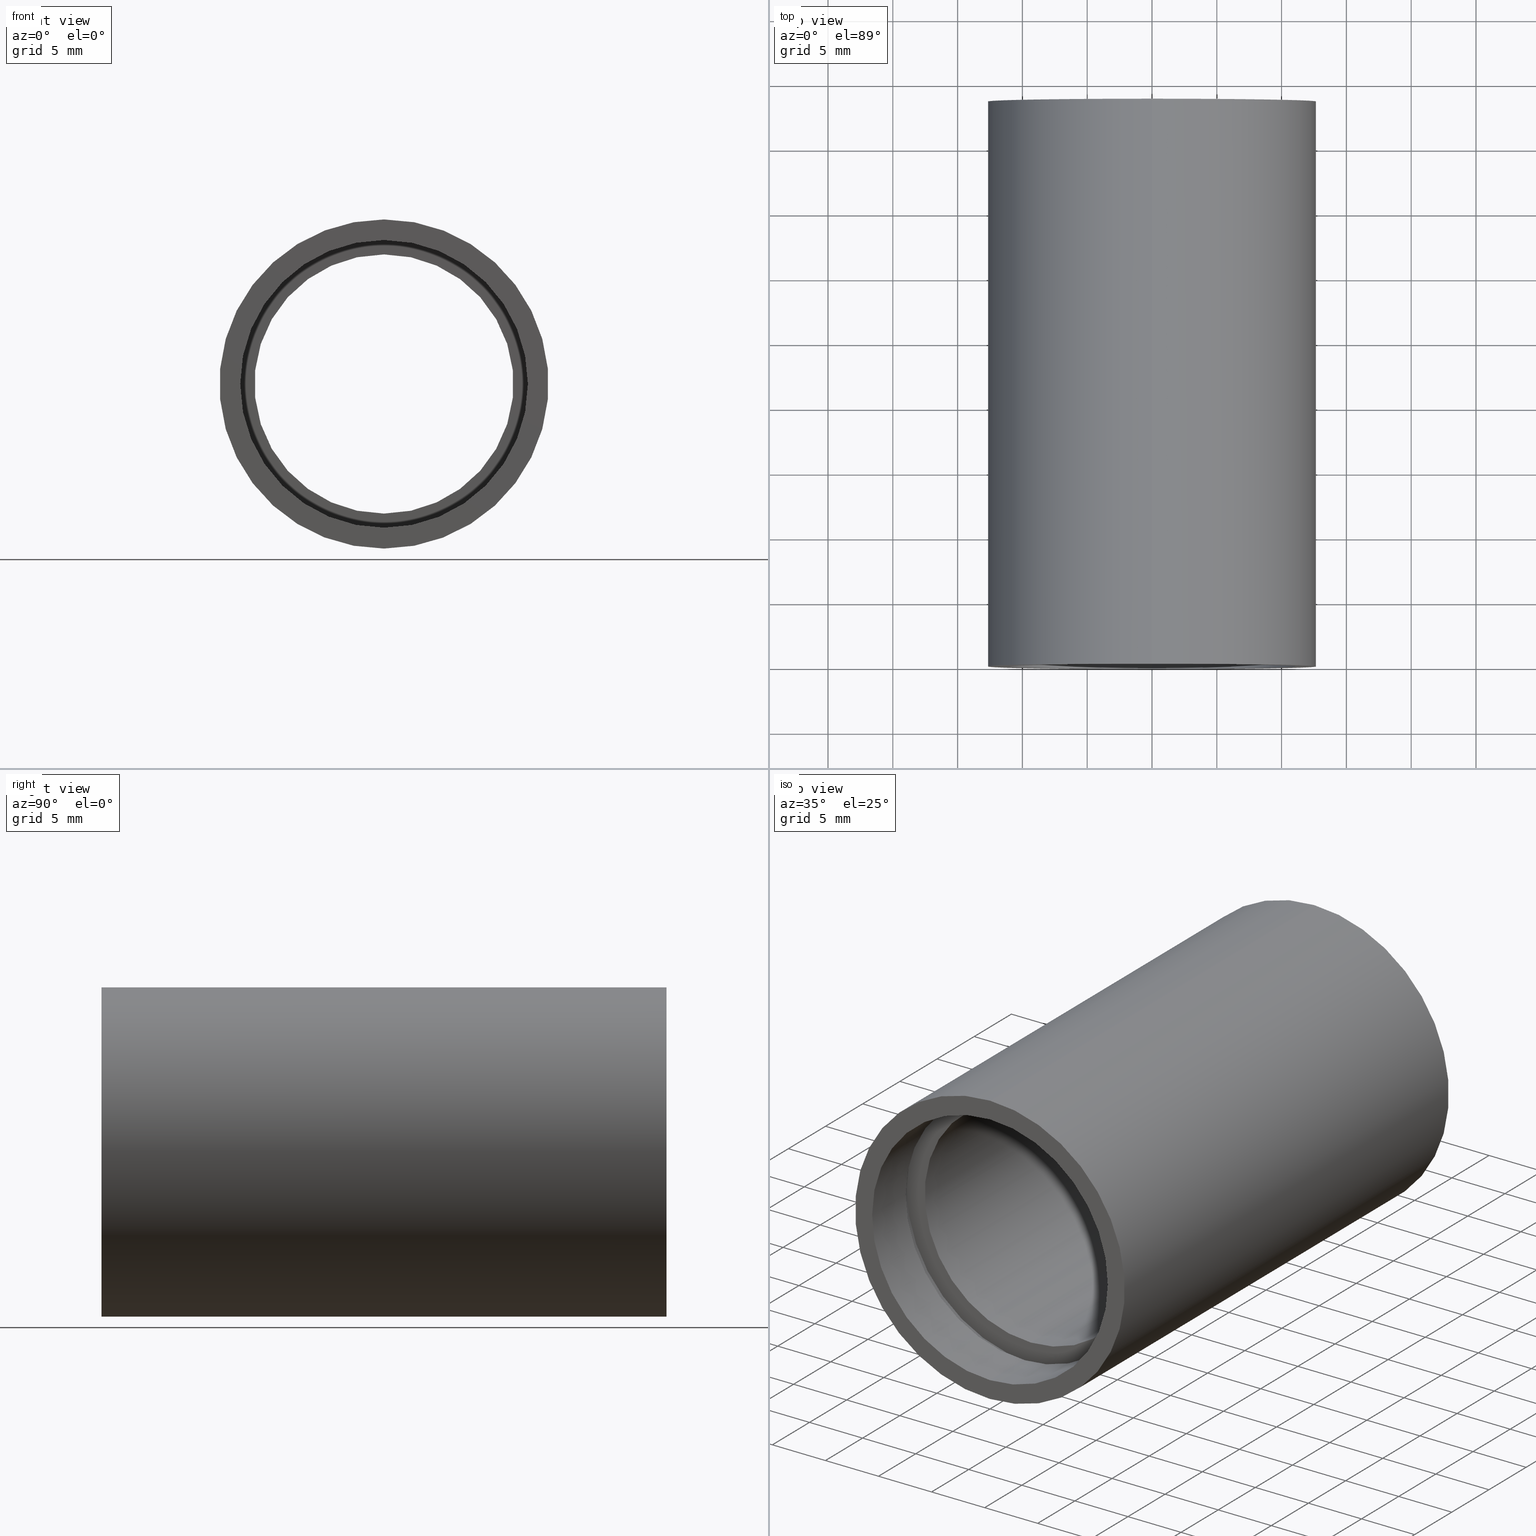
[diagram: canonical four-view strip — front | top / right | iso, engineering-drawing reading convention]
A machine part, canonical four-view strip (front | top / right | iso — engineering-drawing reading convention). The complete STEP part file that produces these views, byte-faithful:
ISO-10303-21;
HEADER;
FILE_DESCRIPTION (( 'STEP AP214' ),
    '1' );
FILE_NAME ('503063.STEP',
    '2019-09-09T02:42:14',
    ( '' ),
    ( '' ),
    'SwSTEP 2.0',
    'SolidWorks 2016',
    '' );
FILE_SCHEMA (( 'AUTOMOTIVE_DESIGN' ));
ENDSEC;

DATA;
#1 = PRODUCT_DEFINITION_SHAPE ( 'NONE', 'NONE',  #514 ) ;
#2 = DIRECTION ( 'NONE',  ( -0.0000000000000000000, 1.000000000000000000, -0.0000000000000000000 ) ) ;
#3 = ORIENTED_EDGE ( 'NONE', *, *, #433, .F. ) ;
#4 = CARTESIAN_POINT ( 'NONE',  ( 0.0000000000000000000, 5.499999999999976900, 10.00000000000002000 ) ) ;
#5 = SURFACE_STYLE_FILL_AREA ( #179 ) ;
#6 = DIRECTION ( 'NONE',  ( -0.0000000000000000000, 1.000000000000000000, -0.0000000000000000000 ) ) ;
#7 = DIRECTION ( 'NONE',  ( -0.0000000000000000000, 1.000000000000000000, -0.0000000000000000000 ) ) ;
#8 = VERTEX_POINT ( 'NONE', #395 ) ;
#9 = DIRECTION ( 'NONE',  ( -0.0000000000000000000, 1.000000000000000000, -0.0000000000000000000 ) ) ;
#10 =( LENGTH_UNIT ( ) NAMED_UNIT ( * ) SI_UNIT ( .MILLI., .METRE. ) );
#11 = AXIS2_PLACEMENT_3D ( 'NONE', #307, #556, #204 ) ;
#12 = AXIS2_PLACEMENT_3D ( 'NONE', #37, #386, #624 ) ;
#13 = DIRECTION ( 'NONE',  ( -0.0000000000000000000, 1.000000000000000000, -0.0000000000000000000 ) ) ;
#14 = CARTESIAN_POINT ( 'NONE',  ( 0.0000000000000000000, -2.775557561562891400E-014, 0.0000000000000000000 ) ) ;
#15 = SURFACE_STYLE_FILL_AREA ( #394 ) ;
#16 = ORIENTED_EDGE ( 'NONE', *, *, #336, .F. ) ;
#17 = ORIENTED_EDGE ( 'NONE', *, *, #516, .F. ) ;
#18 = DIRECTION ( 'NONE',  ( -0.0000000000000000000, 1.000000000000000000, -0.0000000000000000000 ) ) ;
#19 = PRESENTATION_STYLE_ASSIGNMENT (( #231 ) ) ;
#20 = CARTESIAN_POINT ( 'NONE',  ( 11.10000000000002300, -1.590039098016662300E-014, 0.0000000000000000000 ) ) ;
#21 = CARTESIAN_POINT ( 'NONE',  ( 0.0000000000000000000, 39.09999999999998000, 11.70000000000001400 ) ) ;
#22 = ORIENTED_EDGE ( 'NONE', *, *, #385, .F. ) ;
#23 = CARTESIAN_POINT ( 'NONE',  ( 0.0000000000000000000, 38.09999999999998000, 0.0000000000000000000 ) ) ;
#24 = DIRECTION ( 'NONE',  ( 0.0000000000000000000, 0.0000000000000000000, 1.000000000000000000 ) ) ;
#25 = CARTESIAN_POINT ( 'NONE',  ( 0.0000000000000000000, 161.3761669434274500, 0.0000000000000000000 ) ) ;
#26 = SHAPE_DEFINITION_REPRESENTATION ( #1, #415 ) ;
#27 = VERTEX_POINT ( 'NONE', #148 ) ;
#28 = CYLINDRICAL_SURFACE ( 'NONE', #610, 10.00000000000002000 ) ;
#29 = LINE ( 'NONE', #235, #532 ) ;
#30 = MECHANICAL_DESIGN_GEOMETRIC_PRESENTATION_REPRESENTATION (  '', ( #511 ), #609 ) ;
#31 = AXIS2_PLACEMENT_3D ( 'NONE', #129, #489, #530 ) ;
#32 = EDGE_LOOP ( 'NONE', ( #384, #345 ) ) ;
#33 = DIRECTION ( 'NONE',  ( 0.0000000000000000000, 0.0000000000000000000, 1.000000000000000000 ) ) ;
#34 = PRESENTATION_STYLE_ASSIGNMENT (( #135 ) ) ;
#35 = ADVANCED_FACE ( 'NONE', ( #545 ), #468, .F. ) ;
#36 = CARTESIAN_POINT ( 'NONE',  ( 1.432836755002405500E-015, 5.499999999999976900, -11.70000000000001700 ) ) ;
#37 = CARTESIAN_POINT ( 'NONE',  ( 0.0000000000000000000, 39.09999999999998000, 0.0000000000000000000 ) ) ;
#38 = EDGE_CURVE ( 'NONE', #606, #343, #116, .T. ) ;
#39 = VECTOR ( 'NONE', #9, 1000.000000000000000 ) ;
#40 = EDGE_LOOP ( 'NONE', ( #273, #255, #598, #195 ) ) ;
#41 =( NAMED_UNIT ( * ) SI_UNIT ( $, .STERADIAN. ) SOLID_ANGLE_UNIT ( ) );
#42 = CIRCLE ( 'NONE', #372, 10.00000000000002000 ) ;
#43 = AXIS2_PLACEMENT_3D ( 'NONE', #123, #620, #219 ) ;
#44 =( NAMED_UNIT ( * ) SI_UNIT ( $, .STERADIAN. ) SOLID_ANGLE_UNIT ( ) );
#45 = AXIS2_PLACEMENT_3D ( 'NONE', #397, #162, #419 ) ;
#46 = PLANE ( 'NONE',  #479 ) ;
#47 = CARTESIAN_POINT ( 'NONE',  ( 0.0000000000000000000, 38.09999999999998000, 11.70000000000001400 ) ) ;
#48 = ORIENTED_EDGE ( 'NONE', *, *, #505, .T. ) ;
#49 = CYLINDRICAL_SURFACE ( 'NONE', #269, 10.00000000000002000 ) ;
#50 = ORIENTED_EDGE ( 'NONE', *, *, #357, .F. ) ;
#51 = FACE_BOUND ( 'NONE', #325, .T. ) ;
#52 = SURFACE_STYLE_FILL_AREA ( #295 ) ;
#53 = DIRECTION ( 'NONE',  ( -0.0000000000000000000, 1.000000000000000000, -0.0000000000000000000 ) ) ;
#54 =( LENGTH_UNIT ( ) NAMED_UNIT ( * ) SI_UNIT ( .MILLI., .METRE. ) );
#55 = ORIENTED_EDGE ( 'NONE', *, *, #375, .F. ) ;
#56 = LINE ( 'NONE', #303, #559 ) ;
#57 = DIRECTION ( 'NONE',  ( -0.0000000000000000000, 1.000000000000000000, -0.0000000000000000000 ) ) ;
#58 = DIRECTION ( 'NONE',  ( -0.0000000000000000000, 1.000000000000000000, -0.0000000000000000000 ) ) ;
#59 = CYLINDRICAL_SURFACE ( 'NONE', #380, 11.70000000000001400 ) ;
#60 = SURFACE_SIDE_STYLE ('',( #435 ) ) ;
#61 = DIRECTION ( 'NONE',  ( -0.0000000000000000000, 1.000000000000000000, -0.0000000000000000000 ) ) ;
#62 = CARTESIAN_POINT ( 'NONE',  ( 0.0000000000000000000, 161.3761669434274500, 0.0000000000000000000 ) ) ;
#63 = DIRECTION ( 'NONE',  ( 0.0000000000000000000, 0.0000000000000000000, 1.000000000000000000 ) ) ;
#64 = EDGE_LOOP ( 'NONE', ( #553, #301 ) ) ;
#65 = DIRECTION ( 'NONE',  ( 0.0000000000000000000, 0.0000000000000000000, 1.000000000000000000 ) ) ;
#66 = ORIENTED_EDGE ( 'NONE', *, *, #581, .T. ) ;
#67 = EDGE_LOOP ( 'NONE', ( #218, #209, #617, #311 ) ) ;
#68 =( GEOMETRIC_REPRESENTATION_CONTEXT ( 3 ) GLOBAL_UNCERTAINTY_ASSIGNED_CONTEXT ( ( #222 ) ) GLOBAL_UNIT_ASSIGNED_CONTEXT ( ( #436, #181, #41 ) ) REPRESENTATION_CONTEXT ( 'NONE', 'WORKASPACE' ) );
#69 = AXIS2_PLACEMENT_3D ( 'NONE', #480, #422, #177 ) ;
#70 = PRESENTATION_STYLE_ASSIGNMENT (( #98 ) ) ;
#71 = FACE_OUTER_BOUND ( 'NONE', #40, .T. ) ;
#72 = DIRECTION ( 'NONE',  ( -0.0000000000000000000, 1.000000000000000000, -0.0000000000000000000 ) ) ;
#73 = EDGE_LOOP ( 'NONE', ( #185, #159 ) ) ;
#74 = EDGE_CURVE ( 'NONE', #583, #426, #252, .T. ) ;
#75 = CIRCLE ( 'NONE', #270, 12.70000000000001900 ) ;
#76 = AXIS2_PLACEMENT_3D ( 'NONE', #508, #106, #24 ) ;
#77 = ORIENTED_EDGE ( 'NONE', *, *, #302, .T. ) ;
#78 = STYLED_ITEM ( 'NONE', ( #319 ), #125 ) ;
#79 = VERTEX_POINT ( 'NONE', #140 ) ;
#80 = VERTEX_POINT ( 'NONE', #497 ) ;
#81 = CIRCLE ( 'NONE', #104, 11.10000000000001900 ) ;
#82 = ADVANCED_FACE ( 'NONE', ( #300, #551 ), #439, .F. ) ;
#83 = CIRCLE ( 'NONE', #43, 10.00000000000002000 ) ;
#84 = ORIENTED_EDGE ( 'NONE', *, *, #257, .F. ) ;
#85 = DIRECTION ( 'NONE',  ( -0.0000000000000000000, 1.000000000000000000, -0.0000000000000000000 ) ) ;
#86 = CIRCLE ( 'NONE', #240, 12.70000000000001900 ) ;
#87 = CARTESIAN_POINT ( 'NONE',  ( 0.0000000000000000000, -2.775557561562891400E-014, 0.0000000000000000000 ) ) ;
#88 = VERTEX_POINT ( 'NONE', #47 ) ;
#89 = EDGE_LOOP ( 'NONE', ( #388, #323, #615, #334 ) ) ;
#90 = SURFACE_SIDE_STYLE ('',( #5 ) ) ;
#91 =( NAMED_UNIT ( * ) SI_UNIT ( $, .STERADIAN. ) SOLID_ANGLE_UNIT ( ) );
#92 = DIRECTION ( 'NONE',  ( 0.0000000000000000000, 0.0000000000000000000, 1.000000000000000000 ) ) ;
#93 = FACE_OUTER_BOUND ( 'NONE', #207, .T. ) ;
#94 = FILL_AREA_STYLE ('',( #536 ) ) ;
#95 = MECHANICAL_DESIGN_GEOMETRIC_PRESENTATION_REPRESENTATION (  '', ( #136 ), #168 ) ;
#96 = PRESENTATION_LAYER_ASSIGNMENT (  '', '', ( #441 ) ) ;
#97 = CARTESIAN_POINT ( 'NONE',  ( 1.224646799147355400E-015, 5.499999999999976900, -10.00000000000002000 ) ) ;
#98 = SURFACE_STYLE_USAGE ( .BOTH. , #354 ) ;
#99 = EDGE_LOOP ( 'NONE', ( #174, #3, #453, #232 ) ) ;
#100 = CARTESIAN_POINT ( 'NONE',  ( 1.432836755002405100E-015, 161.3761669434274500, -11.70000000000001400 ) ) ;
#101 = EDGE_CURVE ( 'NONE', #473, #470, #29, .T. ) ;
#102 = CARTESIAN_POINT ( 'NONE',  ( 0.0000000000000000000, 38.09999999999998000, 0.0000000000000000000 ) ) ;
#103 = AXIS2_PLACEMENT_3D ( 'NONE', #578, #2, #332 ) ;
#104 = AXIS2_PLACEMENT_3D ( 'NONE', #346, #248, #138 ) ;
#105 = COLOUR_RGB ( '',1.000000000000000000, 1.000000000000000000, 1.000000000000000000 ) ;
#106 = DIRECTION ( 'NONE',  ( -0.0000000000000000000, 1.000000000000000000, -0.0000000000000000000 ) ) ;
#107 = PRESENTATION_LAYER_ASSIGNMENT (  '', '', ( #78 ) ) ;
#108 = CIRCLE ( 'NONE', #571, 12.70000000000001900 ) ;
#109 = DIRECTION ( 'NONE',  ( 0.0000000000000000000, 0.0000000000000000000, 1.000000000000000000 ) ) ;
#110 =( NAMED_UNIT ( * ) PLANE_ANGLE_UNIT ( ) SI_UNIT ( $, .RADIAN. ) );
#111 = CARTESIAN_POINT ( 'NONE',  ( 0.0000000000000000000, 5.499999999999976900, 11.70000000000001700 ) ) ;
#112 = ORIENTED_EDGE ( 'NONE', *, *, #462, .F. ) ;
#113 = FILL_AREA_STYLE_COLOUR ( '', #403 ) ;
#114 = LINE ( 'NONE', #396, #128 ) ;
#115 = UNCERTAINTY_MEASURE_WITH_UNIT (LENGTH_MEASURE( 1.000000000000000100E-005 ), #596, 'distance_accuracy_value', 'NONE');
#116 = LINE ( 'NONE', #348, #333 ) ;
#117 = ORIENTED_EDGE ( 'NONE', *, *, #423, .T. ) ;
#118 = ORIENTED_EDGE ( 'NONE', *, *, #38, .T. ) ;
#119 = PLANE ( 'NONE',  #370 ) ;
#120 = ADVANCED_FACE ( 'NONE', ( #280, #131 ), #452, .F. ) ;
#121 = MECHANICAL_DESIGN_GEOMETRIC_PRESENTATION_REPRESENTATION (  '', ( #478 ), #223 ) ;
#122 = AXIS2_PLACEMENT_3D ( 'NONE', #527, #279, #226 ) ;
#123 = CARTESIAN_POINT ( 'NONE',  ( 0.0000000000000000000, 5.499999999999976900, 0.0000000000000000000 ) ) ;
#124 = ORIENTED_EDGE ( 'NONE', *, *, #130, .F. ) ;
#125 = ADVANCED_FACE ( 'NONE', ( #152 ), #472, .F. ) ;
#126 = AXIS2_PLACEMENT_3D ( 'NONE', #262, #614, #316 ) ;
#127 = CARTESIAN_POINT ( 'NONE',  ( 11.10000000000001900, 4.499999999999983100, 0.0000000000000000000 ) ) ;
#128 = VECTOR ( 'NONE', #595, 1000.000000000000000 ) ;
#129 = CARTESIAN_POINT ( 'NONE',  ( 0.0000000000000000000, 161.3761669434274500, 0.0000000000000000000 ) ) ;
#130 = EDGE_CURVE ( 'NONE', #568, #343, #86, .T. ) ;
#131 = FACE_BOUND ( 'NONE', #73, .T. ) ;
#132 = DIRECTION ( 'NONE',  ( 0.0000000000000000000, 0.0000000000000000000, 1.000000000000000000 ) ) ;
#133 = ORIENTED_EDGE ( 'NONE', *, *, #418, .T. ) ;
#134 = FILL_AREA_STYLE_COLOUR ( '', #519 ) ;
#135 = SURFACE_STYLE_USAGE ( .BOTH. , #437 ) ;
#136 = STYLED_ITEM ( 'NONE', ( #564 ), #579 ) ;
#137 = AXIS2_PLACEMENT_3D ( 'NONE', #275, #383, #424 ) ;
#138 = DIRECTION ( 'NONE',  ( 0.0000000000000000000, 0.0000000000000000000, 1.000000000000000000 ) ) ;
#139 = DIRECTION ( 'NONE',  ( 1.000000000000000000, 0.0000000000000000000, 0.0000000000000000000 ) ) ;
#140 = CARTESIAN_POINT ( 'NONE',  ( 0.0000000000000000000, -2.775557561562891400E-014, 11.10000000000002300 ) ) ;
#141 = MECHANICAL_DESIGN_GEOMETRIC_PRESENTATION_REPRESENTATION (  '', ( #78 ), #210 ) ;
#142 = SURFACE_SIDE_STYLE ('',( #264 ) ) ;
#143 = APPLICATION_PROTOCOL_DEFINITION ( 'draft international standard', 'automotive_design', 1998, #540 ) ;
#144 = DIRECTION ( 'NONE',  ( 0.0000000000000000000, -0.0000000000000000000, -1.000000000000000000 ) ) ;
#145 = ORIENTED_EDGE ( 'NONE', *, *, #317, .F. ) ;
#146 =( NAMED_UNIT ( * ) SI_UNIT ( $, .STERADIAN. ) SOLID_ANGLE_UNIT ( ) );
#147 = CARTESIAN_POINT ( 'NONE',  ( 0.0000000000000000000, 38.09999999999998000, 10.00000000000002000 ) ) ;
#148 = CARTESIAN_POINT ( 'NONE',  ( 0.0000000000000000000, 43.59999999999998700, 11.60000000000003200 ) ) ;
#149 = FILL_AREA_STYLE ('',( #289 ) ) ;
#150 = CIRCLE ( 'NONE', #169, 11.70000000000001400 ) ;
#151 = DIRECTION ( 'NONE',  ( 0.0000000000000000000, 0.0000000000000000000, 1.000000000000000000 ) ) ;
#152 = FACE_OUTER_BOUND ( 'NONE', #215, .T. ) ;
#153 = ORIENTED_EDGE ( 'NONE', *, *, #164, .F. ) ;
#154 = DIRECTION ( 'NONE',  ( 0.0000000000000000000, 0.0000000000000000000, 1.000000000000000000 ) ) ;
#155 = AXIS2_PLACEMENT_3D ( 'NONE', #297, #18, #182 ) ;
#156 = CARTESIAN_POINT ( 'NONE',  ( 1.224646799147355400E-015, 38.09999999999998000, -10.00000000000002000 ) ) ;
#157 = FACE_OUTER_BOUND ( 'NONE', #557, .T. ) ;
#158 =( GEOMETRIC_REPRESENTATION_CONTEXT ( 3 ) GLOBAL_UNCERTAINTY_ASSIGNED_CONTEXT ( ( #254 ) ) GLOBAL_UNIT_ASSIGNED_CONTEXT ( ( #54, #446, #146 ) ) REPRESENTATION_CONTEXT ( 'NONE', 'WORKASPACE' ) );
#159 = ORIENTED_EDGE ( 'NONE', *, *, #485, .T. ) ;
#160 = ORIENTED_EDGE ( 'NONE', *, *, #616, .T. ) ;
#161 = VECTOR ( 'NONE', #193, 1000.000000000000000 ) ;
#162 = DIRECTION ( 'NONE',  ( -0.0000000000000000000, 1.000000000000000000, 0.0000000000000000000 ) ) ;
#163 = PRODUCT_DEFINITION_CONTEXT ( 'detailed design', #540, 'design' ) ;
#164 = EDGE_CURVE ( 'NONE', #343, #568, #75, .T. ) ;
#165 = ORIENTED_EDGE ( 'NONE', *, *, #278, .F. ) ;
#166 = PRESENTATION_STYLE_ASSIGNMENT (( #364 ) ) ;
#167 = VECTOR ( 'NONE', #6, 1000.000000000000000 ) ;
#168 =( GEOMETRIC_REPRESENTATION_CONTEXT ( 3 ) GLOBAL_UNCERTAINTY_ASSIGNED_CONTEXT ( ( #376 ) ) GLOBAL_UNIT_ASSIGNED_CONTEXT ( ( #10, #590, #500 ) ) REPRESENTATION_CONTEXT ( 'NONE', 'WORKASPACE' ) );
#169 = AXIS2_PLACEMENT_3D ( 'NONE', #23, #412, #109 ) ;
#170 = ADVANCED_FACE ( 'NONE', ( #322 ), #304, .F. ) ;
#171 = ORIENTED_EDGE ( 'NONE', *, *, #393, .T. ) ;
#172 = DIRECTION ( 'NONE',  ( -0.0000000000000000000, 1.000000000000000000, -0.0000000000000000000 ) ) ;
#173 = ORIENTED_EDGE ( 'NONE', *, *, #287, .F. ) ;
#174 = ORIENTED_EDGE ( 'NONE', *, *, #616, .F. ) ;
#175 = CIRCLE ( 'NONE', #237, 11.10000000000001900 ) ;
#176 = FACE_OUTER_BOUND ( 'NONE', #32, .T. ) ;
#177 = DIRECTION ( 'NONE',  ( 0.0000000000000000000, 0.0000000000000000000, 1.000000000000000000 ) ) ;
#178 = VERTEX_POINT ( 'NONE', #111 ) ;
#179 = FILL_AREA_STYLE ('',( #134 ) ) ;
#180 = FACE_OUTER_BOUND ( 'NONE', #267, .T. ) ;
#181 =( NAMED_UNIT ( * ) PLANE_ANGLE_UNIT ( ) SI_UNIT ( $, .RADIAN. ) );
#182 = DIRECTION ( 'NONE',  ( 0.0000000000000000000, 0.0000000000000000000, 1.000000000000000000 ) ) ;
#183 = PRODUCT_CONTEXT ( 'NONE', #355, 'mechanical' ) ;
#184 = CARTESIAN_POINT ( 'NONE',  ( 11.60000000000003200, 43.59999999999998700, 0.0000000000000000000 ) ) ;
#185 = ORIENTED_EDGE ( 'NONE', *, *, #433, .T. ) ;
#186 = EDGE_LOOP ( 'NONE', ( #228, #118, #124, #420 ) ) ;
#187 = ORIENTED_EDGE ( 'NONE', *, *, #602, .T. ) ;
#188 = FILL_AREA_STYLE ('',( #251 ) ) ;
#189 = CARTESIAN_POINT ( 'NONE',  ( 1.359357947053564900E-015, -2.775557561562891400E-014, -11.10000000000002300 ) ) ;
#190 = AXIS2_PLACEMENT_3D ( 'NONE', #244, #299, #298 ) ;
#191 = CIRCLE ( 'NONE', #190, 11.70000000000001400 ) ;
#192 = LINE ( 'NONE', #401, #161 ) ;
#193 = DIRECTION ( 'NONE',  ( -0.0000000000000000000, 1.000000000000000000, -0.0000000000000000000 ) ) ;
#194 = DIRECTION ( 'NONE',  ( 0.0000000000000000000, 0.0000000000000000000, 1.000000000000000000 ) ) ;
#195 = ORIENTED_EDGE ( 'NONE', *, *, #353, .F. ) ;
#196 = CARTESIAN_POINT ( 'NONE',  ( 0.0000000000000000000, -2.775557561562891400E-014, 12.70000000000001900 ) ) ;
#197 = DIRECTION ( 'NONE',  ( 0.0000000000000000000, 0.0000000000000000000, 1.000000000000000000 ) ) ;
#198 = CARTESIAN_POINT ( 'NONE',  ( 0.0000000000000000000, 43.59999999999998700, 12.70000000000001900 ) ) ;
#199 = PRESENTATION_LAYER_ASSIGNMENT (  '', '', ( #404 ) ) ;
#200 = CARTESIAN_POINT ( 'NONE',  ( 0.0000000000000000000, 39.09999999999998000, 0.0000000000000000000 ) ) ;
#201 = COLOUR_RGB ( '',1.000000000000000000, 1.000000000000000000, 1.000000000000000000 ) ;
#202 = CARTESIAN_POINT ( 'NONE',  ( 0.0000000000000000000, 4.499999999999976000, 0.0000000000000000000 ) ) ;
#203 = DIRECTION ( 'NONE',  ( 0.0000000000000000000, 0.0000000000000000000, 1.000000000000000000 ) ) ;
#204 = DIRECTION ( 'NONE',  ( 0.0000000000000000000, 0.0000000000000000000, 1.000000000000000000 ) ) ;
#205 = AXIS2_PLACEMENT_3D ( 'NONE', #258, #558, #197 ) ;
#206 = AXIS2_PLACEMENT_3D ( 'NONE', #200, #58, #454 ) ;
#207 = EDGE_LOOP ( 'NONE', ( #576, #432, #133, #153 ) ) ;
#208 = ORIENTED_EDGE ( 'NONE', *, *, #302, .F. ) ;
#209 = ORIENTED_EDGE ( 'NONE', *, *, #101, .T. ) ;
#210 =( GEOMETRIC_REPRESENTATION_CONTEXT ( 3 ) GLOBAL_UNCERTAINTY_ASSIGNED_CONTEXT ( ( #526 ) ) GLOBAL_UNIT_ASSIGNED_CONTEXT ( ( #565, #567, #214 ) ) REPRESENTATION_CONTEXT ( 'NONE', 'WORKASPACE' ) );
#211 = STYLED_ITEM ( 'NONE', ( #166 ), #225 ) ;
#212 = LINE ( 'NONE', #327, #167 ) ;
#213 = DIRECTION ( 'NONE',  ( -0.0000000000000000000, 1.000000000000000000, -0.0000000000000000000 ) ) ;
#214 =( NAMED_UNIT ( * ) SI_UNIT ( $, .STERADIAN. ) SOLID_ANGLE_UNIT ( ) );
#215 = EDGE_LOOP ( 'NONE', ( #288, #217, #463, #324 ) ) ;
#216 = SURFACE_STYLE_USAGE ( .BOTH. , #518 ) ;
#217 = ORIENTED_EDGE ( 'NONE', *, *, #581, .F. ) ;
#218 = ORIENTED_EDGE ( 'NONE', *, *, #534, .F. ) ;
#219 = DIRECTION ( 'NONE',  ( 0.0000000000000000000, 0.0000000000000000000, 1.000000000000000000 ) ) ;
#220 = COLOUR_RGB ( '',1.000000000000000000, 1.000000000000000000, 1.000000000000000000 ) ;
#221 = LINE ( 'NONE', #434, #482 ) ;
#222 = UNCERTAINTY_MEASURE_WITH_UNIT (LENGTH_MEASURE( 1.000000000000000100E-005 ), #436, 'distance_accuracy_value', 'NONE');
#223 =( GEOMETRIC_REPRESENTATION_CONTEXT ( 3 ) GLOBAL_UNCERTAINTY_ASSIGNED_CONTEXT ( ( #594 ) ) GLOBAL_UNIT_ASSIGNED_CONTEXT ( ( #586, #340, #44 ) ) REPRESENTATION_CONTEXT ( 'NONE', 'WORKASPACE' ) );
#224 = MECHANICAL_DESIGN_GEOMETRIC_PRESENTATION_REPRESENTATION (  '', ( #512 ), #158 ) ;
#225 = ADVANCED_FACE ( 'NONE', ( #283 ), #49, .F. ) ;
#226 = DIRECTION ( 'NONE',  ( 0.0000000000000000000, 0.0000000000000000000, 1.000000000000000000 ) ) ;
#227 = CARTESIAN_POINT ( 'NONE',  ( 1.359357947053564500E-015, 4.499999999999976000, -11.10000000000001900 ) ) ;
#228 = ORIENTED_EDGE ( 'NONE', *, *, #385, .T. ) ;
#229 = EDGE_CURVE ( 'NONE', #88, #290, #56, .T. ) ;
#230 = DIRECTION ( 'NONE',  ( -0.0000000000000000000, 1.000000000000000000, -0.0000000000000000000 ) ) ;
#231 = SURFACE_STYLE_USAGE ( .BOTH. , #90 ) ;
#232 = ORIENTED_EDGE ( 'NONE', *, *, #471, .T. ) ;
#233 = SURFACE_STYLE_USAGE ( .BOTH. , #537 ) ;
#234 = EDGE_LOOP ( 'NONE', ( #16, #84 ) ) ;
#235 = CARTESIAN_POINT ( 'NONE',  ( 1.432836755002405500E-015, 161.3761669434274500, -11.70000000000001700 ) ) ;
#236 = AXIS2_PLACEMENT_3D ( 'NONE', #14, #543, #132 ) ;
#237 = AXIS2_PLACEMENT_3D ( 'NONE', #202, #460, #65 ) ;
#238 =( NAMED_UNIT ( * ) SI_UNIT ( $, .STERADIAN. ) SOLID_ANGLE_UNIT ( ) );
#239 = CIRCLE ( 'NONE', #341, 11.70000000000001700 ) ;
#240 = AXIS2_PLACEMENT_3D ( 'NONE', #515, #213, #562 ) ;
#241 = MECHANICAL_DESIGN_GEOMETRIC_PRESENTATION_REPRESENTATION (  '', ( #211 ), #292 ) ;
#242 = CARTESIAN_POINT ( 'NONE',  ( 0.0000000000000000000, 161.3761669434274500, 11.60000000000003300 ) ) ;
#243 = FILL_AREA_STYLE_COLOUR ( '', #201 ) ;
#244 = CARTESIAN_POINT ( 'NONE',  ( 0.0000000000000000000, 39.09999999999998000, 0.0000000000000000000 ) ) ;
#245 = FILL_AREA_STYLE_COLOUR ( '', #566 ) ;
#246 = VERTEX_POINT ( 'NONE', #156 ) ;
#247 = EDGE_CURVE ( 'NONE', #88, #80, #563, .T. ) ;
#248 = DIRECTION ( 'NONE',  ( -0.0000000000000000000, 1.000000000000000000, -0.0000000000000000000 ) ) ;
#249 = CARTESIAN_POINT ( 'NONE',  ( 1.420590287010933900E-015, 39.09999999999998000, -11.60000000000003300 ) ) ;
#250 = CARTESIAN_POINT ( 'NONE',  ( 0.0000000000000000000, 161.3761669434274500, 0.0000000000000000000 ) ) ;
#251 = FILL_AREA_STYLE_COLOUR ( '', #220 ) ;
#252 = LINE ( 'NONE', #400, #39 ) ;
#253 = EDGE_LOOP ( 'NONE', ( #589, #160, #77, #344 ) ) ;
#254 = UNCERTAINTY_MEASURE_WITH_UNIT (LENGTH_MEASURE( 1.000000000000000100E-005 ), #54, 'distance_accuracy_value', 'NONE');
#255 = ORIENTED_EDGE ( 'NONE', *, *, #462, .T. ) ;
#256 = DIRECTION ( 'NONE',  ( 0.0000000000000000000, -0.0000000000000000000, -1.000000000000000000 ) ) ;
#257 = EDGE_CURVE ( 'NONE', #426, #8, #175, .T. ) ;
#258 = CARTESIAN_POINT ( 'NONE',  ( 11.60000000000003300, 39.09999999999998000, 0.0000000000000000000 ) ) ;
#259 = CARTESIAN_POINT ( 'NONE',  ( 0.0000000000000000000, 161.3761669434274500, 10.00000000000002000 ) ) ;
#260 = AXIS2_PLACEMENT_3D ( 'NONE', #438, #92, #139 ) ;
#261 = MECHANICAL_DESIGN_GEOMETRIC_PRESENTATION_REPRESENTATION (  '', ( #441 ), #294 ) ;
#262 = CARTESIAN_POINT ( 'NONE',  ( 0.0000000000000000000, 161.3761669434274500, 0.0000000000000000000 ) ) ;
#263 = CARTESIAN_POINT ( 'NONE',  ( 0.0000000000000000000, 161.3761669434274500, 0.0000000000000000000 ) ) ;
#264 = SURFACE_STYLE_FILL_AREA ( #149 ) ;
#265 = CYLINDRICAL_SURFACE ( 'NONE', #371, 11.60000000000003300 ) ;
#266 = SURFACE_STYLE_FILL_AREA ( #467 ) ;
#267 = EDGE_LOOP ( 'NONE', ( #510, #390, #461, #444 ) ) ;
#268 = FACE_BOUND ( 'NONE', #234, .T. ) ;
#269 = AXIS2_PLACEMENT_3D ( 'NONE', #62, #408, #601 ) ;
#270 = AXIS2_PLACEMENT_3D ( 'NONE', #604, #367, #608 ) ;
#271 = DIRECTION ( 'NONE',  ( 0.0000000000000000000, 0.0000000000000000000, 1.000000000000000000 ) ) ;
#272 = ADVANCED_FACE ( 'NONE', ( #447 ), #611, .T. ) ;
#273 = ORIENTED_EDGE ( 'NONE', *, *, #423, .F. ) ;
#274 = EDGE_CURVE ( 'NONE', #80, #88, #150, .T. ) ;
#275 = CARTESIAN_POINT ( 'NONE',  ( 0.0000000000000000000, 161.3761669434274500, 0.0000000000000000000 ) ) ;
#276 = COLOUR_RGB ( '',1.000000000000000000, 1.000000000000000000, 1.000000000000000000 ) ;
#277 = LINE ( 'NONE', #259, #570 ) ;
#278 = EDGE_CURVE ( 'NONE', #358, #533, #368, .T. ) ;
#279 = DIRECTION ( 'NONE',  ( -0.0000000000000000000, 1.000000000000000000, -0.0000000000000000000 ) ) ;
#280 = FACE_OUTER_BOUND ( 'NONE', #312, .T. ) ;
#281 = ORIENTED_EDGE ( 'NONE', *, *, #451, .F. ) ;
#282 = CARTESIAN_POINT ( 'NONE',  ( 0.0000000000000000000, 161.3761669434274500, 0.0000000000000000000 ) ) ;
#283 = FACE_OUTER_BOUND ( 'NONE', #99, .T. ) ;
#284 = CIRCLE ( 'NONE', #11, 11.60000000000003200 ) ;
#285 = SURFACE_STYLE_USAGE ( .BOTH. , #291 ) ;
#286 = DIRECTION ( 'NONE',  ( -0.0000000000000000000, 1.000000000000000000, -0.0000000000000000000 ) ) ;
#287 = EDGE_CURVE ( 'NONE', #290, #406, #481, .T. ) ;
#288 = ORIENTED_EDGE ( 'NONE', *, *, #74, .F. ) ;
#289 = FILL_AREA_STYLE_COLOUR ( '', #276 ) ;
#290 = VERTEX_POINT ( 'NONE', #21 ) ;
#291 = SURFACE_SIDE_STYLE ('',( #52 ) ) ;
#292 =( GEOMETRIC_REPRESENTATION_CONTEXT ( 3 ) GLOBAL_UNCERTAINTY_ASSIGNED_CONTEXT ( ( #430 ) ) GLOBAL_UNIT_ASSIGNED_CONTEXT ( ( #361, #110, #455 ) ) REPRESENTATION_CONTEXT ( 'NONE', 'WORKASPACE' ) );
#293 = AXIS2_PLACEMENT_3D ( 'NONE', #362, #57, #509 ) ;
#294 =( GEOMETRIC_REPRESENTATION_CONTEXT ( 3 ) GLOBAL_UNCERTAINTY_ASSIGNED_CONTEXT ( ( #548 ) ) GLOBAL_UNIT_ASSIGNED_CONTEXT ( ( #502, #597, #91 ) ) REPRESENTATION_CONTEXT ( 'NONE', 'WORKASPACE' ) );
#295 = FILL_AREA_STYLE ('',( #243 ) ) ;
#296 = CIRCLE ( 'NONE', #12, 11.60000000000003300 ) ;
#297 = CARTESIAN_POINT ( 'NONE',  ( 0.0000000000000000000, 161.3761669434274500, 0.0000000000000000000 ) ) ;
#298 = DIRECTION ( 'NONE',  ( 0.0000000000000000000, 0.0000000000000000000, 1.000000000000000000 ) ) ;
#299 = DIRECTION ( 'NONE',  ( -0.0000000000000000000, 1.000000000000000000, -0.0000000000000000000 ) ) ;
#300 = FACE_BOUND ( 'NONE', #64, .T. ) ;
#301 = ORIENTED_EDGE ( 'NONE', *, *, #520, .F. ) ;
#302 = EDGE_CURVE ( 'NONE', #246, #618, #428, .T. ) ;
#303 = CARTESIAN_POINT ( 'NONE',  ( 0.0000000000000000000, 161.3761669434274500, 11.70000000000001400 ) ) ;
#304 = CYLINDRICAL_SURFACE ( 'NONE', #126, 11.70000000000001700 ) ;
#305 = CYLINDRICAL_SURFACE ( 'NONE', #31, 11.70000000000001400 ) ;
#306 = DIRECTION ( 'NONE',  ( -0.0000000000000000000, 1.000000000000000000, -0.0000000000000000000 ) ) ;
#307 = CARTESIAN_POINT ( 'NONE',  ( 0.0000000000000000000, 43.59999999999998700, 0.0000000000000000000 ) ) ;
#308 = AXIS2_PLACEMENT_3D ( 'NONE', #409, #459, #256 ) ;
#309 = AXIS2_PLACEMENT_3D ( 'NONE', #310, #417, #414 ) ;
#310 = CARTESIAN_POINT ( 'NONE',  ( 0.0000000000000000000, 39.09999999999998000, 0.0000000000000000000 ) ) ;
#311 = ORIENTED_EDGE ( 'NONE', *, *, #393, .F. ) ;
#312 = EDGE_LOOP ( 'NONE', ( #591, #281 ) ) ;
#313 = ORIENTED_EDGE ( 'NONE', *, *, #101, .F. ) ;
#314 = DIRECTION ( 'NONE',  ( -0.0000000000000000000, 1.000000000000000000, -0.0000000000000000000 ) ) ;
#315 = CYLINDRICAL_SURFACE ( 'NONE', #137, 12.70000000000001900 ) ;
#316 = DIRECTION ( 'NONE',  ( 0.0000000000000000000, 0.0000000000000000000, 1.000000000000000000 ) ) ;
#317 = EDGE_CURVE ( 'NONE', #406, #290, #191, .T. ) ;
#318 = DIRECTION ( 'NONE',  ( -0.0000000000000000000, 1.000000000000000000, -0.0000000000000000000 ) ) ;
#319 = PRESENTATION_STYLE_ASSIGNMENT (( #216 ) ) ;
#320 = ORIENTED_EDGE ( 'NONE', *, *, #353, .T. ) ;
#321 = CIRCLE ( 'NONE', #329, 12.70000000000001900 ) ;
#322 = FACE_OUTER_BOUND ( 'NONE', #607, .T. ) ;
#323 = ORIENTED_EDGE ( 'NONE', *, *, #247, .F. ) ;
#324 = ORIENTED_EDGE ( 'NONE', *, *, #336, .T. ) ;
#325 = EDGE_LOOP ( 'NONE', ( #66, #48 ) ) ;
#326 = ADVANCED_FACE ( 'NONE', ( #529 ), #28, .F. ) ;
#327 = CARTESIAN_POINT ( 'NONE',  ( 1.420590287010933900E-015, 161.3761669434274500, -11.60000000000003300 ) ) ;
#328 = PRESENTATION_LAYER_ASSIGNMENT (  '', '', ( #478 ) ) ;
#329 = AXIS2_PLACEMENT_3D ( 'NONE', #539, #13, #588 ) ;
#330 = ADVANCED_FACE ( 'NONE', ( #498, #51 ), #46, .F. ) ;
#331 = PRESENTATION_STYLE_ASSIGNMENT (( #233 ) ) ;
#332 = DIRECTION ( 'NONE',  ( 0.0000000000000000000, 0.0000000000000000000, 1.000000000000000000 ) ) ;
#333 = VECTOR ( 'NONE', #286, 1000.000000000000000 ) ;
#334 = ORIENTED_EDGE ( 'NONE', *, *, #287, .T. ) ;
#335 = CARTESIAN_POINT ( 'NONE',  ( 0.0000000000000000000, 161.3761669434274500, 12.70000000000001900 ) ) ;
#336 = EDGE_CURVE ( 'NONE', #8, #426, #81, .T. ) ;
#337 = FACE_OUTER_BOUND ( 'NONE', #503, .T. ) ;
#338 = DIRECTION ( 'NONE',  ( 0.0000000000000000000, 0.0000000000000000000, 1.000000000000000000 ) ) ;
#339 =( NAMED_UNIT ( * ) SI_UNIT ( $, .STERADIAN. ) SOLID_ANGLE_UNIT ( ) );
#340 =( NAMED_UNIT ( * ) PLANE_ANGLE_UNIT ( ) SI_UNIT ( $, .RADIAN. ) );
#341 = AXIS2_PLACEMENT_3D ( 'NONE', #490, #352, #443 ) ;
#342 = PRESENTATION_LAYER_ASSIGNMENT (  '', '', ( #512 ) ) ;
#343 = VERTEX_POINT ( 'NONE', #550 ) ;
#344 = ORIENTED_EDGE ( 'NONE', *, *, #549, .F. ) ;
#345 = ORIENTED_EDGE ( 'NONE', *, *, #274, .T. ) ;
#346 = CARTESIAN_POINT ( 'NONE',  ( 0.0000000000000000000, 4.499999999999976000, 0.0000000000000000000 ) ) ;
#347 = DIRECTION ( 'NONE',  ( 0.0000000000000000000, 0.0000000000000000000, 1.000000000000000000 ) ) ;
#348 = CARTESIAN_POINT ( 'NONE',  ( 1.555301434917140800E-015, 161.3761669434274500, -12.70000000000001900 ) ) ;
#349 = MANIFOLD_SOLID_BREP ( '��ת1', #416 ) ;
#350 = SURFACE_STYLE_FILL_AREA ( #188 ) ;
#351 = VECTOR ( 'NONE', #531, 1000.000000000000000 ) ;
#352 = DIRECTION ( 'NONE',  ( -0.0000000000000000000, 1.000000000000000000, -0.0000000000000000000 ) ) ;
#353 = EDGE_CURVE ( 'NONE', #358, #27, #458, .T. ) ;
#354 = SURFACE_SIDE_STYLE ('',( #350 ) ) ;
#355 = APPLICATION_CONTEXT ( 'automotive_design' ) ;
#356 = CYLINDRICAL_SURFACE ( 'NONE', #541, 11.60000000000003300 ) ;
#357 = EDGE_CURVE ( 'NONE', #606, #574, #321, .T. ) ;
#358 = VERTEX_POINT ( 'NONE', #450 ) ;
#359 = DIRECTION ( 'NONE',  ( -0.0000000000000000000, 1.000000000000000000, -0.0000000000000000000 ) ) ;
#360 = CARTESIAN_POINT ( 'NONE',  ( 0.0000000000000000000, 161.3761669434274500, 0.0000000000000000000 ) ) ;
#361 =( LENGTH_UNIT ( ) NAMED_UNIT ( * ) SI_UNIT ( .MILLI., .METRE. ) );
#362 = CARTESIAN_POINT ( 'NONE',  ( 0.0000000000000000000, -2.775557561562891400E-014, 0.0000000000000000000 ) ) ;
#363 = VERTEX_POINT ( 'NONE', #97 ) ;
#364 = SURFACE_STYLE_USAGE ( .BOTH. , #60 ) ;
#365 = DIRECTION ( 'NONE',  ( 0.0000000000000000000, 0.0000000000000000000, 1.000000000000000000 ) ) ;
#366 = ORIENTED_EDGE ( 'NONE', *, *, #74, .T. ) ;
#367 = DIRECTION ( 'NONE',  ( -0.0000000000000000000, 1.000000000000000000, -0.0000000000000000000 ) ) ;
#368 = CIRCLE ( 'NONE', #309, 11.60000000000003300 ) ;
#369 = VECTOR ( 'NONE', #495, 1000.000000000000000 ) ;
#370 = AXIS2_PLACEMENT_3D ( 'NONE', #127, #486, #474 ) ;
#371 = AXIS2_PLACEMENT_3D ( 'NONE', #491, #53, #496 ) ;
#372 = AXIS2_PLACEMENT_3D ( 'NONE', #379, #172, #33 ) ;
#373 = ORIENTED_EDGE ( 'NONE', *, *, #505, .F. ) ;
#374 = FILL_AREA_STYLE_COLOUR ( '', #522 ) ;
#375 = EDGE_CURVE ( 'NONE', #79, #8, #192, .T. ) ;
#376 = UNCERTAINTY_MEASURE_WITH_UNIT (LENGTH_MEASURE( 1.000000000000000100E-005 ), #10, 'distance_accuracy_value', 'NONE');
#377 = ORIENTED_EDGE ( 'NONE', *, *, #534, .T. ) ;
#378 = VERTEX_POINT ( 'NONE', #546 ) ;
#379 = CARTESIAN_POINT ( 'NONE',  ( 0.0000000000000000000, 38.09999999999998000, 0.0000000000000000000 ) ) ;
#380 = AXIS2_PLACEMENT_3D ( 'NONE', #250, #599, #63 ) ;
#381 = CIRCLE ( 'NONE', #69, 11.70000000000001700 ) ;
#382 = EDGE_CURVE ( 'NONE', #80, #406, #612, .T. ) ;
#383 = DIRECTION ( 'NONE',  ( -0.0000000000000000000, 1.000000000000000000, -0.0000000000000000000 ) ) ;
#384 = ORIENTED_EDGE ( 'NONE', *, *, #247, .T. ) ;
#385 = EDGE_CURVE ( 'NONE', #574, #606, #108, .T. ) ;
#386 = DIRECTION ( 'NONE',  ( -0.0000000000000000000, 1.000000000000000000, -0.0000000000000000000 ) ) ;
#387 = FACE_OUTER_BOUND ( 'NONE', #399, .T. ) ;
#388 = ORIENTED_EDGE ( 'NONE', *, *, #382, .F. ) ;
#389 = APPLICATION_PROTOCOL_DEFINITION ( 'draft international standard', 'automotive_design', 1998, #355 ) ;
#390 = ORIENTED_EDGE ( 'NONE', *, *, #382, .T. ) ;
#391 =( GEOMETRIC_REPRESENTATION_CONTEXT ( 3 ) GLOBAL_UNCERTAINTY_ASSIGNED_CONTEXT ( ( #115 ) ) GLOBAL_UNIT_ASSIGNED_CONTEXT ( ( #596, #492, #339 ) ) REPRESENTATION_CONTEXT ( 'NONE', 'WORKASPACE' ) );
#392 = CIRCLE ( 'NONE', #103, 11.70000000000001700 ) ;
#393 = EDGE_CURVE ( 'NONE', #477, #178, #221, .T. ) ;
#394 = FILL_AREA_STYLE ('',( #245 ) ) ;
#395 = CARTESIAN_POINT ( 'NONE',  ( 0.0000000000000000000, 4.499999999999976000, 11.10000000000001900 ) ) ;
#396 = CARTESIAN_POINT ( 'NONE',  ( 1.224646799147355400E-015, 161.3761669434274500, -10.00000000000002000 ) ) ;
#397 = CARTESIAN_POINT ( 'NONE',  ( 11.70000000000001700, 5.499999999999984000, 0.0000000000000000000 ) ) ;
#398 = PRESENTATION_LAYER_ASSIGNMENT (  '', '', ( #136 ) ) ;
#399 = EDGE_LOOP ( 'NONE', ( #112, #165, #320, #507 ) ) ;
#400 = CARTESIAN_POINT ( 'NONE',  ( 1.359357947053564500E-015, 161.3761669434274500, -11.10000000000002100 ) ) ;
#401 = CARTESIAN_POINT ( 'NONE',  ( 0.0000000000000000000, 161.3761669434274500, 11.10000000000002100 ) ) ;
#402 = SURFACE_STYLE_USAGE ( .BOTH. , #142 ) ;
#403 = COLOUR_RGB ( '',1.000000000000000000, 1.000000000000000000, 1.000000000000000000 ) ;
#404 = STYLED_ITEM ( 'NONE', ( #34 ), #35 ) ;
#405 = PLANE ( 'NONE',  #308 ) ;
#406 = VERTEX_POINT ( 'NONE', #431 ) ;
#407 = PLANE ( 'NONE',  #205 ) ;
#408 = DIRECTION ( 'NONE',  ( -0.0000000000000000000, 1.000000000000000000, -0.0000000000000000000 ) ) ;
#409 = CARTESIAN_POINT ( 'NONE',  ( 10.00000000000002000, 38.09999999999998000, 0.0000000000000000000 ) ) ;
#410 = PRESENTATION_LAYER_ASSIGNMENT (  '', '', ( #511 ) ) ;
#411 = AXIS2_PLACEMENT_3D ( 'NONE', #513, #72, #154 ) ;
#412 = DIRECTION ( 'NONE',  ( -0.0000000000000000000, 1.000000000000000000, -0.0000000000000000000 ) ) ;
#413 = ORIENTED_EDGE ( 'NONE', *, *, #471, .F. ) ;
#414 = DIRECTION ( 'NONE',  ( 0.0000000000000000000, 0.0000000000000000000, 1.000000000000000000 ) ) ;
#415 = ADVANCED_BREP_SHAPE_REPRESENTATION ( '503063', ( #349, #260 ), #68 ) ;
#416 = CLOSED_SHELL ( 'NONE', ( #35, #523, #326, #427, #579, #272, #330, #476, #82, #622, #575, #572, #528, #225, #120, #170, #484, #125 ) ) ;
#417 = DIRECTION ( 'NONE',  ( -0.0000000000000000000, 1.000000000000000000, -0.0000000000000000000 ) ) ;
#418 = EDGE_CURVE ( 'NONE', #574, #568, #499, .T. ) ;
#419 = DIRECTION ( 'NONE',  ( 0.0000000000000000000, 0.0000000000000000000, 1.000000000000000000 ) ) ;
#420 = ORIENTED_EDGE ( 'NONE', *, *, #418, .F. ) ;
#421 = FACE_OUTER_BOUND ( 'NONE', #67, .T. ) ;
#422 = DIRECTION ( 'NONE',  ( -0.0000000000000000000, 1.000000000000000000, -0.0000000000000000000 ) ) ;
#423 = EDGE_CURVE ( 'NONE', #533, #358, #296, .T. ) ;
#424 = DIRECTION ( 'NONE',  ( 0.0000000000000000000, 0.0000000000000000000, 1.000000000000000000 ) ) ;
#425 = EDGE_LOOP ( 'NONE', ( #373, #366, #464, #55 ) ) ;
#426 = VERTEX_POINT ( 'NONE', #227 ) ;
#427 = ADVANCED_FACE ( 'NONE', ( #180 ), #305, .F. ) ;
#428 = CIRCLE ( 'NONE', #542, 10.00000000000002000 ) ;
#429 = CARTESIAN_POINT ( 'NONE',  ( 0.0000000000000000000, 43.59999999999998700, 0.0000000000000000000 ) ) ;
#430 = UNCERTAINTY_MEASURE_WITH_UNIT (LENGTH_MEASURE( 1.000000000000000100E-005 ), #361, 'distance_accuracy_value', 'NONE');
#431 = CARTESIAN_POINT ( 'NONE',  ( 1.432836755002405100E-015, 39.09999999999998000, -11.70000000000001400 ) ) ;
#432 = ORIENTED_EDGE ( 'NONE', *, *, #357, .T. ) ;
#433 = EDGE_CURVE ( 'NONE', #493, #363, #547, .T. ) ;
#434 = CARTESIAN_POINT ( 'NONE',  ( 0.0000000000000000000, 161.3761669434274500, 11.70000000000001700 ) ) ;
#435 = SURFACE_STYLE_FILL_AREA ( #504 ) ;
#436 =( LENGTH_UNIT ( ) NAMED_UNIT ( * ) SI_UNIT ( .MILLI., .METRE. ) );
#437 = SURFACE_SIDE_STYLE ('',( #560 ) ) ;
#438 = CARTESIAN_POINT ( 'NONE',  ( 0.0000000000000000000, 0.0000000000000000000, 0.0000000000000000000 ) ) ;
#439 = PLANE ( 'NONE',  #587 ) ;
#440 = AXIS2_PLACEMENT_3D ( 'NONE', #456, #506, #203 ) ;
#441 = STYLED_ITEM ( 'NONE', ( #621 ), #349 ) ;
#442 = EDGE_LOOP ( 'NONE', ( #22, #50 ) ) ;
#443 = DIRECTION ( 'NONE',  ( 0.0000000000000000000, 0.0000000000000000000, 1.000000000000000000 ) ) ;
#444 = ORIENTED_EDGE ( 'NONE', *, *, #229, .F. ) ;
#445 = DIRECTION ( 'NONE',  ( 0.0000000000000000000, -1.000000000000000000, 0.0000000000000000000 ) ) ;
#446 =( NAMED_UNIT ( * ) PLANE_ANGLE_UNIT ( ) SI_UNIT ( $, .RADIAN. ) );
#447 = FACE_OUTER_BOUND ( 'NONE', #186, .T. ) ;
#448 =( LENGTH_UNIT ( ) NAMED_UNIT ( * ) SI_UNIT ( .MILLI., .METRE. ) );
#449 = FACE_BOUND ( 'NONE', #475, .T. ) ;
#450 = CARTESIAN_POINT ( 'NONE',  ( 0.0000000000000000000, 39.09999999999998000, 11.60000000000003300 ) ) ;
#451 = EDGE_CURVE ( 'NONE', #470, #178, #381, .T. ) ;
#452 = PLANE ( 'NONE',  #45 ) ;
#453 = ORIENTED_EDGE ( 'NONE', *, *, #549, .T. ) ;
#454 = DIRECTION ( 'NONE',  ( 0.0000000000000000000, 0.0000000000000000000, 1.000000000000000000 ) ) ;
#455 =( NAMED_UNIT ( * ) SI_UNIT ( $, .STERADIAN. ) SOLID_ANGLE_UNIT ( ) );
#456 = CARTESIAN_POINT ( 'NONE',  ( 0.0000000000000000000, 4.499999999999976000, 0.0000000000000000000 ) ) ;
#457 = DIRECTION ( 'NONE',  ( -0.0000000000000000000, 1.000000000000000000, -0.0000000000000000000 ) ) ;
#458 = LINE ( 'NONE', #242, #524 ) ;
#459 = DIRECTION ( 'NONE',  ( 0.0000000000000000000, -1.000000000000000000, 0.0000000000000000000 ) ) ;
#460 = DIRECTION ( 'NONE',  ( -0.0000000000000000000, 1.000000000000000000, -0.0000000000000000000 ) ) ;
#461 = ORIENTED_EDGE ( 'NONE', *, *, #317, .T. ) ;
#462 = EDGE_CURVE ( 'NONE', #533, #378, #212, .T. ) ;
#463 = ORIENTED_EDGE ( 'NONE', *, *, #375, .T. ) ;
#464 = ORIENTED_EDGE ( 'NONE', *, *, #257, .T. ) ;
#465 = CIRCLE ( 'NONE', #600, 11.60000000000003200 ) ;
#466 = AXIS2_PLACEMENT_3D ( 'NONE', #25, #61, #365 ) ;
#467 = FILL_AREA_STYLE ('',( #113 ) ) ;
#468 = CYLINDRICAL_SURFACE ( 'NONE', #155, 11.10000000000002100 ) ;
#469 = DIRECTION ( 'NONE',  ( 0.0000000000000000000, 0.0000000000000000000, 1.000000000000000000 ) ) ;
#470 = VERTEX_POINT ( 'NONE', #36 ) ;
#471 = EDGE_CURVE ( 'NONE', #618, #246, #42, .T. ) ;
#472 = CYLINDRICAL_SURFACE ( 'NONE', #569, 11.10000000000002100 ) ;
#473 = VERTEX_POINT ( 'NONE', #582 ) ;
#474 = DIRECTION ( 'NONE',  ( 0.0000000000000000000, -0.0000000000000000000, -1.000000000000000000 ) ) ;
#475 = EDGE_LOOP ( 'NONE', ( #413, #208 ) ) ;
#476 = ADVANCED_FACE ( 'NONE', ( #93 ), #315, .T. ) ;
#477 = VERTEX_POINT ( 'NONE', #580 ) ;
#478 = STYLED_ITEM ( 'NONE', ( #331 ), #415 ) ;
#479 = AXIS2_PLACEMENT_3D ( 'NONE', #20, #593, #151 ) ;
#480 = CARTESIAN_POINT ( 'NONE',  ( 0.0000000000000000000, 5.499999999999976900, 0.0000000000000000000 ) ) ;
#481 = CIRCLE ( 'NONE', #206, 11.70000000000001400 ) ;
#482 = VECTOR ( 'NONE', #230, 1000.000000000000000 ) ;
#483 = PRODUCT_DEFINITION_FORMATION_WITH_SPECIFIED_SOURCE ( '�κ�', '', #603, .NOT_KNOWN. ) ;
#484 = ADVANCED_FACE ( 'NONE', ( #268, #337 ), #119, .F. ) ;
#485 = EDGE_CURVE ( 'NONE', #363, #493, #83, .T. ) ;
#486 = DIRECTION ( 'NONE',  ( 0.0000000000000000000, -1.000000000000000000, 0.0000000000000000000 ) ) ;
#487 = EDGE_LOOP ( 'NONE', ( #561, #517 ) ) ;
#488 = EDGE_CURVE ( 'NONE', #27, #378, #465, .T. ) ;
#489 = DIRECTION ( 'NONE',  ( -0.0000000000000000000, 1.000000000000000000, -0.0000000000000000000 ) ) ;
#490 = CARTESIAN_POINT ( 'NONE',  ( 0.0000000000000000000, 5.499999999999976900, 0.0000000000000000000 ) ) ;
#491 = CARTESIAN_POINT ( 'NONE',  ( 0.0000000000000000000, 161.3761669434274500, 0.0000000000000000000 ) ) ;
#492 =( NAMED_UNIT ( * ) PLANE_ANGLE_UNIT ( ) SI_UNIT ( $, .RADIAN. ) );
#493 = VERTEX_POINT ( 'NONE', #4 ) ;
#494 = PRESENTATION_LAYER_ASSIGNMENT (  '', '', ( #211 ) ) ;
#495 = DIRECTION ( 'NONE',  ( -0.0000000000000000000, 1.000000000000000000, -0.0000000000000000000 ) ) ;
#496 = DIRECTION ( 'NONE',  ( 0.0000000000000000000, 0.0000000000000000000, 1.000000000000000000 ) ) ;
#497 = CARTESIAN_POINT ( 'NONE',  ( 1.432836755002405100E-015, 38.09999999999998000, -11.70000000000001400 ) ) ;
#498 = FACE_OUTER_BOUND ( 'NONE', #442, .T. ) ;
#499 = LINE ( 'NONE', #335, #351 ) ;
#500 =( NAMED_UNIT ( * ) SI_UNIT ( $, .STERADIAN. ) SOLID_ANGLE_UNIT ( ) );
#501 = DIRECTION ( 'NONE',  ( -0.0000000000000000000, 1.000000000000000000, -0.0000000000000000000 ) ) ;
#502 =( LENGTH_UNIT ( ) NAMED_UNIT ( * ) SI_UNIT ( .MILLI., .METRE. ) );
#503 = EDGE_LOOP ( 'NONE', ( #544, #377 ) ) ;
#504 = FILL_AREA_STYLE ('',( #374 ) ) ;
#505 = EDGE_CURVE ( 'NONE', #583, #79, #592, .T. ) ;
#506 = DIRECTION ( 'NONE',  ( -0.0000000000000000000, 1.000000000000000000, -0.0000000000000000000 ) ) ;
#507 = ORIENTED_EDGE ( 'NONE', *, *, #488, .T. ) ;
#508 = CARTESIAN_POINT ( 'NONE',  ( 0.0000000000000000000, 161.3761669434274500, 0.0000000000000000000 ) ) ;
#509 = DIRECTION ( 'NONE',  ( 0.0000000000000000000, 0.0000000000000000000, 1.000000000000000000 ) ) ;
#510 = ORIENTED_EDGE ( 'NONE', *, *, #274, .F. ) ;
#511 = STYLED_ITEM ( 'NONE', ( #19 ), #622 ) ;
#512 = STYLED_ITEM ( 'NONE', ( #70 ), #326 ) ;
#513 = CARTESIAN_POINT ( 'NONE',  ( 0.0000000000000000000, 38.09999999999998000, 0.0000000000000000000 ) ) ;
#514 = PRODUCT_DEFINITION ( 'δ֪', '', #483, #163 ) ;
#515 = CARTESIAN_POINT ( 'NONE',  ( 0.0000000000000000000, 43.59999999999998700, 0.0000000000000000000 ) ) ;
#516 = EDGE_CURVE ( 'NONE', #477, #473, #555, .T. ) ;
#517 = ORIENTED_EDGE ( 'NONE', *, *, #164, .T. ) ;
#518 = SURFACE_SIDE_STYLE ('',( #266 ) ) ;
#519 = COLOUR_RGB ( '',1.000000000000000000, 1.000000000000000000, 1.000000000000000000 ) ;
#520 = EDGE_CURVE ( 'NONE', #378, #27, #284, .T. ) ;
#521 = EDGE_LOOP ( 'NONE', ( #605, #117 ) ) ;
#522 = COLOUR_RGB ( '',1.000000000000000000, 1.000000000000000000, 1.000000000000000000 ) ;
#523 = ADVANCED_FACE ( 'NONE', ( #421 ), #623, .F. ) ;
#524 = VECTOR ( 'NONE', #359, 1000.000000000000000 ) ;
#525 = DIRECTION ( 'NONE',  ( -0.0000000000000000000, 1.000000000000000000, -0.0000000000000000000 ) ) ;
#526 = UNCERTAINTY_MEASURE_WITH_UNIT (LENGTH_MEASURE( 1.000000000000000100E-005 ), #565, 'distance_accuracy_value', 'NONE');
#527 = CARTESIAN_POINT ( 'NONE',  ( 0.0000000000000000000, 5.499999999999976900, 0.0000000000000000000 ) ) ;
#528 = ADVANCED_FACE ( 'NONE', ( #449, #176 ), #405, .F. ) ;
#529 = FACE_OUTER_BOUND ( 'NONE', #253, .T. ) ;
#530 = DIRECTION ( 'NONE',  ( 0.0000000000000000000, 0.0000000000000000000, 1.000000000000000000 ) ) ;
#531 = DIRECTION ( 'NONE',  ( -0.0000000000000000000, 1.000000000000000000, -0.0000000000000000000 ) ) ;
#532 = VECTOR ( 'NONE', #501, 1000.000000000000000 ) ;
#533 = VERTEX_POINT ( 'NONE', #249 ) ;
#534 = EDGE_CURVE ( 'NONE', #473, #477, #392, .T. ) ;
#535 = CARTESIAN_POINT ( 'NONE',  ( 1.555301434917140800E-015, -2.775557561562891400E-014, -12.70000000000001900 ) ) ;
#536 = FILL_AREA_STYLE_COLOUR ( '', #105 ) ;
#537 = SURFACE_SIDE_STYLE ('',( #15 ) ) ;
#538 = FACE_BOUND ( 'NONE', #521, .T. ) ;
#539 = CARTESIAN_POINT ( 'NONE',  ( 0.0000000000000000000, -2.775557561562891400E-014, 0.0000000000000000000 ) ) ;
#540 = APPLICATION_CONTEXT ( 'automotive_design' ) ;
#541 = AXIS2_PLACEMENT_3D ( 'NONE', #282, #7, #347 ) ;
#542 = AXIS2_PLACEMENT_3D ( 'NONE', #102, #552, #554 ) ;
#543 = DIRECTION ( 'NONE',  ( -0.0000000000000000000, 1.000000000000000000, -0.0000000000000000000 ) ) ;
#544 = ORIENTED_EDGE ( 'NONE', *, *, #516, .T. ) ;
#545 = FACE_OUTER_BOUND ( 'NONE', #425, .T. ) ;
#546 = CARTESIAN_POINT ( 'NONE',  ( 1.420590287010933700E-015, 43.59999999999998700, -11.60000000000003200 ) ) ;
#547 = CIRCLE ( 'NONE', #122, 10.00000000000002000 ) ;
#548 = UNCERTAINTY_MEASURE_WITH_UNIT (LENGTH_MEASURE( 1.000000000000000100E-005 ), #502, 'distance_accuracy_value', 'NONE');
#549 = EDGE_CURVE ( 'NONE', #493, #618, #277, .T. ) ;
#550 = CARTESIAN_POINT ( 'NONE',  ( 1.555301434917140800E-015, 43.59999999999998700, -12.70000000000001900 ) ) ;
#551 = FACE_OUTER_BOUND ( 'NONE', #487, .T. ) ;
#552 = DIRECTION ( 'NONE',  ( -0.0000000000000000000, 1.000000000000000000, -0.0000000000000000000 ) ) ;
#553 = ORIENTED_EDGE ( 'NONE', *, *, #488, .F. ) ;
#554 = DIRECTION ( 'NONE',  ( 0.0000000000000000000, 0.0000000000000000000, 1.000000000000000000 ) ) ;
#555 = CIRCLE ( 'NONE', #440, 11.70000000000001700 ) ;
#556 = DIRECTION ( 'NONE',  ( -0.0000000000000000000, 1.000000000000000000, -0.0000000000000000000 ) ) ;
#557 = EDGE_LOOP ( 'NONE', ( #173, #145 ) ) ;
#558 = DIRECTION ( 'NONE',  ( -0.0000000000000000000, 1.000000000000000000, 0.0000000000000000000 ) ) ;
#559 = VECTOR ( 'NONE', #306, 1000.000000000000000 ) ;
#560 = SURFACE_STYLE_FILL_AREA ( #94 ) ;
#561 = ORIENTED_EDGE ( 'NONE', *, *, #130, .T. ) ;
#562 = DIRECTION ( 'NONE',  ( 0.0000000000000000000, 0.0000000000000000000, 1.000000000000000000 ) ) ;
#563 = CIRCLE ( 'NONE', #411, 11.70000000000001400 ) ;
#564 = PRESENTATION_STYLE_ASSIGNMENT (( #285 ) ) ;
#565 =( LENGTH_UNIT ( ) NAMED_UNIT ( * ) SI_UNIT ( .MILLI., .METRE. ) );
#566 = COLOUR_RGB ( '',1.000000000000000000, 1.000000000000000000, 1.000000000000000000 ) ;
#567 =( NAMED_UNIT ( * ) PLANE_ANGLE_UNIT ( ) SI_UNIT ( $, .RADIAN. ) );
#568 = VERTEX_POINT ( 'NONE', #198 ) ;
#569 = AXIS2_PLACEMENT_3D ( 'NONE', #263, #318, #469 ) ;
#570 = VECTOR ( 'NONE', #314, 1000.000000000000000 ) ;
#571 = AXIS2_PLACEMENT_3D ( 'NONE', #87, #85, #338 ) ;
#572 = ADVANCED_FACE ( 'NONE', ( #577 ), #59, .F. ) ;
#573 = UNCERTAINTY_MEASURE_WITH_UNIT (LENGTH_MEASURE( 1.000000000000000100E-005 ), #448, 'distance_accuracy_value', 'NONE');
#574 = VERTEX_POINT ( 'NONE', #196 ) ;
#575 = ADVANCED_FACE ( 'NONE', ( #157, #538 ), #407, .F. ) ;
#576 = ORIENTED_EDGE ( 'NONE', *, *, #38, .F. ) ;
#577 = FACE_OUTER_BOUND ( 'NONE', #89, .T. ) ;
#578 = CARTESIAN_POINT ( 'NONE',  ( 0.0000000000000000000, 4.499999999999976000, 0.0000000000000000000 ) ) ;
#579 = ADVANCED_FACE ( 'NONE', ( #71 ), #265, .F. ) ;
#580 = CARTESIAN_POINT ( 'NONE',  ( 0.0000000000000000000, 4.499999999999976000, 11.70000000000001700 ) ) ;
#581 = EDGE_CURVE ( 'NONE', #79, #583, #584, .T. ) ;
#582 = CARTESIAN_POINT ( 'NONE',  ( 1.432836755002405500E-015, 4.499999999999976000, -11.70000000000001700 ) ) ;
#583 = VERTEX_POINT ( 'NONE', #189 ) ;
#584 = CIRCLE ( 'NONE', #236, 11.10000000000002300 ) ;
#585 =( NAMED_UNIT ( * ) PLANE_ANGLE_UNIT ( ) SI_UNIT ( $, .RADIAN. ) );
#586 =( LENGTH_UNIT ( ) NAMED_UNIT ( * ) SI_UNIT ( .MILLI., .METRE. ) );
#587 = AXIS2_PLACEMENT_3D ( 'NONE', #184, #445, #144 ) ;
#588 = DIRECTION ( 'NONE',  ( 0.0000000000000000000, 0.0000000000000000000, 1.000000000000000000 ) ) ;
#589 = ORIENTED_EDGE ( 'NONE', *, *, #485, .F. ) ;
#590 =( NAMED_UNIT ( * ) PLANE_ANGLE_UNIT ( ) SI_UNIT ( $, .RADIAN. ) );
#591 = ORIENTED_EDGE ( 'NONE', *, *, #602, .F. ) ;
#592 = CIRCLE ( 'NONE', #293, 11.10000000000002300 ) ;
#593 = DIRECTION ( 'NONE',  ( -0.0000000000000000000, 1.000000000000000000, 0.0000000000000000000 ) ) ;
#594 = UNCERTAINTY_MEASURE_WITH_UNIT (LENGTH_MEASURE( 1.000000000000000100E-005 ), #586, 'distance_accuracy_value', 'NONE');
#595 = DIRECTION ( 'NONE',  ( -0.0000000000000000000, 1.000000000000000000, -0.0000000000000000000 ) ) ;
#596 =( LENGTH_UNIT ( ) NAMED_UNIT ( * ) SI_UNIT ( .MILLI., .METRE. ) );
#597 =( NAMED_UNIT ( * ) PLANE_ANGLE_UNIT ( ) SI_UNIT ( $, .RADIAN. ) );
#598 = ORIENTED_EDGE ( 'NONE', *, *, #520, .T. ) ;
#599 = DIRECTION ( 'NONE',  ( -0.0000000000000000000, 1.000000000000000000, -0.0000000000000000000 ) ) ;
#600 = AXIS2_PLACEMENT_3D ( 'NONE', #429, #525, #271 ) ;
#601 = DIRECTION ( 'NONE',  ( 0.0000000000000000000, 0.0000000000000000000, 1.000000000000000000 ) ) ;
#602 = EDGE_CURVE ( 'NONE', #178, #470, #239, .T. ) ;
#603 = PRODUCT ( '503063', '503063', '', ( #183 ) ) ;
#604 = CARTESIAN_POINT ( 'NONE',  ( 0.0000000000000000000, 43.59999999999998700, 0.0000000000000000000 ) ) ;
#605 = ORIENTED_EDGE ( 'NONE', *, *, #278, .T. ) ;
#606 = VERTEX_POINT ( 'NONE', #535 ) ;
#607 = EDGE_LOOP ( 'NONE', ( #313, #17, #171, #187 ) ) ;
#608 = DIRECTION ( 'NONE',  ( 0.0000000000000000000, 0.0000000000000000000, 1.000000000000000000 ) ) ;
#609 =( GEOMETRIC_REPRESENTATION_CONTEXT ( 3 ) GLOBAL_UNCERTAINTY_ASSIGNED_CONTEXT ( ( #573 ) ) GLOBAL_UNIT_ASSIGNED_CONTEXT ( ( #448, #585, #238 ) ) REPRESENTATION_CONTEXT ( 'NONE', 'WORKASPACE' ) );
#610 = AXIS2_PLACEMENT_3D ( 'NONE', #360, #457, #194 ) ;
#611 = CYLINDRICAL_SURFACE ( 'NONE', #76, 12.70000000000001900 ) ;
#612 = LINE ( 'NONE', #100, #369 ) ;
#613 = PRODUCT_RELATED_PRODUCT_CATEGORY ( 'part', '', ( #603 ) ) ;
#614 = DIRECTION ( 'NONE',  ( -0.0000000000000000000, 1.000000000000000000, -0.0000000000000000000 ) ) ;
#615 = ORIENTED_EDGE ( 'NONE', *, *, #229, .T. ) ;
#616 = EDGE_CURVE ( 'NONE', #363, #246, #114, .T. ) ;
#617 = ORIENTED_EDGE ( 'NONE', *, *, #451, .T. ) ;
#618 = VERTEX_POINT ( 'NONE', #147 ) ;
#619 = MECHANICAL_DESIGN_GEOMETRIC_PRESENTATION_REPRESENTATION (  '', ( #404 ), #391 ) ;
#620 = DIRECTION ( 'NONE',  ( -0.0000000000000000000, 1.000000000000000000, -0.0000000000000000000 ) ) ;
#621 = PRESENTATION_STYLE_ASSIGNMENT (( #402 ) ) ;
#622 = ADVANCED_FACE ( 'NONE', ( #387 ), #356, .F. ) ;
#623 = CYLINDRICAL_SURFACE ( 'NONE', #466, 11.70000000000001700 ) ;
#624 = DIRECTION ( 'NONE',  ( 0.0000000000000000000, 0.0000000000000000000, 1.000000000000000000 ) ) ;
ENDSEC;
END-ISO-10303-21;
